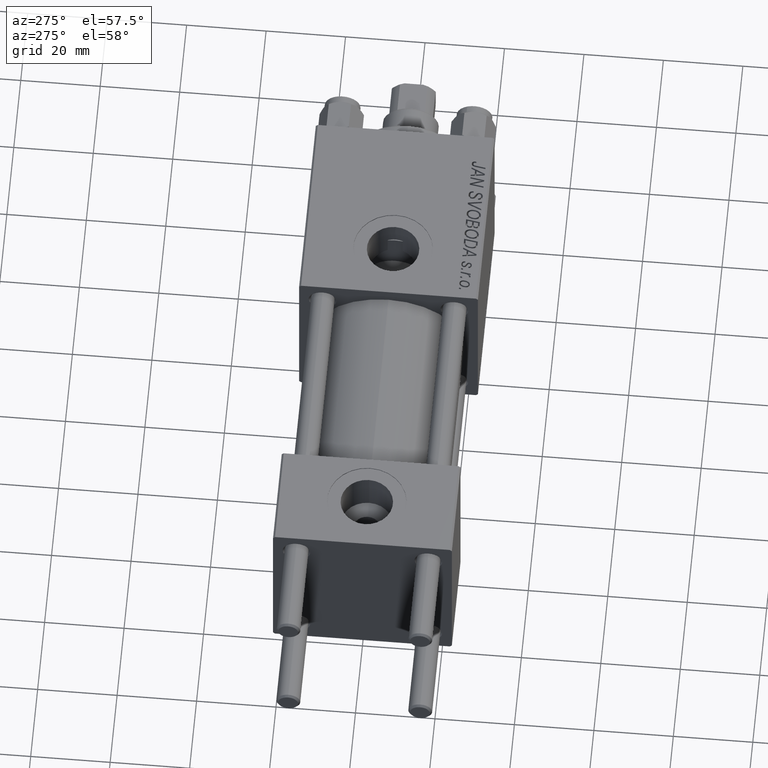
[diagram: clean part render]
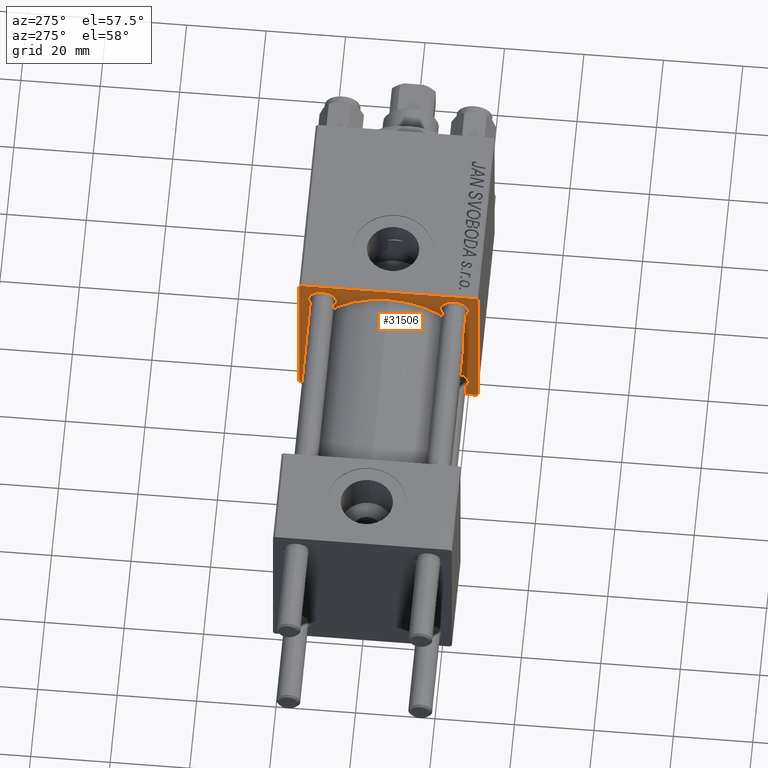
[diagram: same view with one face highlighted and labeled with its STEP entity id]
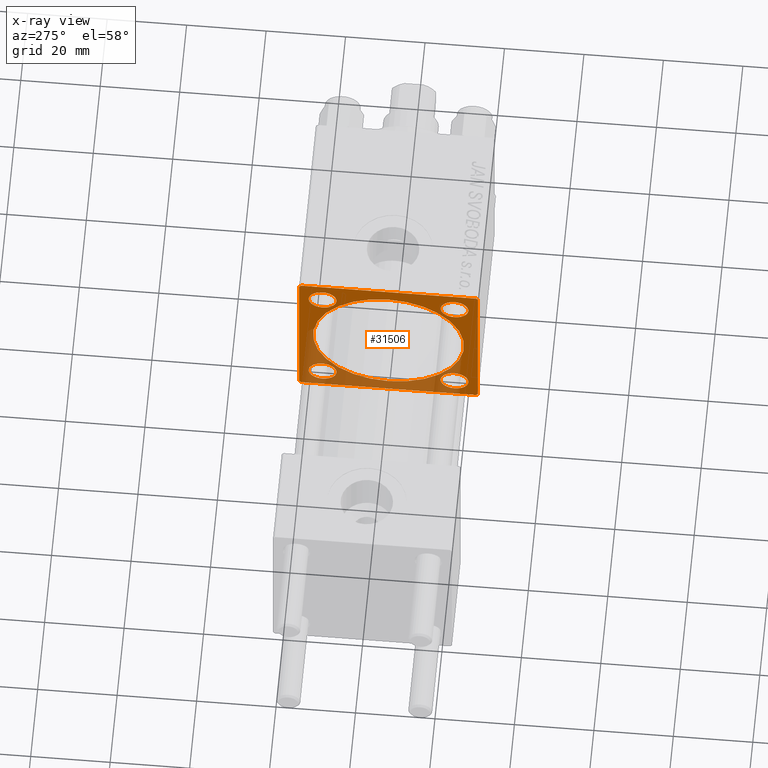
[diagram: x-ray of the same camera — body ghosted, the highlighted face saturated]
A machine part, auxiliary view. The second image highlights one B-rep face of the part: STEP entity #31506.
The next image is the same camera in x-ray: the body ghosted, the highlighted face saturated — about 35% of this face is hidden behind the body in this view.
In plain terms, the highlighted planar face has unit normal (-1, 0, 0).
Its self-contained STEP definition (entity closure, byte-faithful):
#254 = LINE ( 'NONE', #46551, #16432 ) ;
#352 = CIRCLE ( 'NONE', #48853, 19.00000000000000000 ) ;
#766 = CARTESIAN_POINT ( 'NONE',  ( 75.00000000000001421, -22.25000000000015277, -22.24999999999984013 ) ) ;
#838 = LINE ( 'NONE', #16783, #18905 ) ;
#996 = EDGE_LOOP ( 'NONE', ( #19220, #10251 ) ) ;
#1128 = DIRECTION ( 'NONE',  ( 1.000000000000000000, 0.000000000000000000, 0.000000000000000000 ) ) ;
#1183 = EDGE_CURVE ( 'NONE', #45757, #34801, #9941, .T. ) ;
#1452 = CARTESIAN_POINT ( 'NONE',  ( 75.00000000000001421, -16.59999999999999076, 13.09999999999999076 ) ) ;
#1459 = CARTESIAN_POINT ( 'NONE',  ( 75.00000000000001421, 0.000000000000000000, 0.000000000000000000 ) ) ;
#1831 = EDGE_LOOP ( 'NONE', ( #20210, #45706 ) ) ;
#1970 = FACE_BOUND ( 'NONE', #996, .T. ) ;
#2568 = CIRCLE ( 'NONE', #8174, 3.500000000000016875 ) ;
#2714 = EDGE_CURVE ( 'NONE', #23776, #42687, #11061, .T. ) ;
#2731 = VERTEX_POINT ( 'NONE', #41916 ) ;
#2834 = VERTEX_POINT ( 'NONE', #42360 ) ;
#2961 = DIRECTION ( 'NONE',  ( 0.000000000000000000, 0.000000000000000000, 1.000000000000000000 ) ) ;
#3202 = DIRECTION ( 'NONE',  ( 1.000000000000000000, -0.000000000000000000, 0.000000000000000000 ) ) ;
#3515 = DIRECTION ( 'NONE',  ( 1.000000000000000000, -0.000000000000000000, 0.000000000000000000 ) ) ;
#3828 = VERTEX_POINT ( 'NONE', #16471 ) ;
#4093 = AXIS2_PLACEMENT_3D ( 'NONE', #10116, #3515, #34137 ) ;
#4515 = AXIS2_PLACEMENT_3D ( 'NONE', #12258, #23141, #19370 ) ;
#4802 = CARTESIAN_POINT ( 'NONE',  ( 75.00000000000001421, 16.59999999999999787, -16.60000000000000497 ) ) ;
#5153 = AXIS2_PLACEMENT_3D ( 'NONE', #14535, #26901, #29982 ) ;
#5256 = FACE_BOUND ( 'NONE', #39639, .T. ) ;
#5264 = DIRECTION ( 'NONE',  ( 0.000000000000000000, 0.000000000000000000, 1.000000000000000000 ) ) ;
#6060 = ORIENTED_EDGE ( 'NONE', *, *, #8781, .F. ) ;
#6610 = CIRCLE ( 'NONE', #13070, 19.00000000000000000 ) ;
#6703 = EDGE_LOOP ( 'NONE', ( #16966, #13516, #6060, #22972, #40967, #35537, #6851, #27292 ) ) ;
#6851 = ORIENTED_EDGE ( 'NONE', *, *, #10288, .T. ) ;
#7837 = DIRECTION ( 'NONE',  ( 0.000000000000000000, 0.000000000000000000, -1.000000000000000000 ) ) ;
#8105 = DIRECTION ( 'NONE',  ( 0.000000000000000000, -0.7071067811865425767, 0.7071067811865525687 ) ) ;
#8174 = AXIS2_PLACEMENT_3D ( 'NONE', #30563, #43446, #5264 ) ;
#8368 = VECTOR ( 'NONE', #43005, 1000.000000000000000 ) ;
#8767 = EDGE_CURVE ( 'NONE', #40916, #45757, #31373, .T. ) ;
#8781 = EDGE_CURVE ( 'NONE', #44977, #3828, #254, .T. ) ;
#9199 = VERTEX_POINT ( 'NONE', #27203 ) ;
#9461 = EDGE_CURVE ( 'NONE', #14257, #22183, #48780, .T. ) ;
#9697 = LINE ( 'NONE', #10191, #11962 ) ;
#9941 = LINE ( 'NONE', #49161, #43860 ) ;
#10116 = CARTESIAN_POINT ( 'NONE',  ( 75.00000000000001421, -16.59999999999999076, 16.60000000000000853 ) ) ;
#10191 = CARTESIAN_POINT ( 'NONE',  ( 75.00000000000001421, 22.50000000000000355, 22.50000000000000355 ) ) ;
#10251 = ORIENTED_EDGE ( 'NONE', *, *, #9461, .T. ) ;
#10288 = EDGE_CURVE ( 'NONE', #42687, #40916, #838, .T. ) ;
#10506 = CARTESIAN_POINT ( 'NONE',  ( 75.00000000000001421, 16.59999999999999787, 13.09999999999998721 ) ) ;
#10610 = AXIS2_PLACEMENT_3D ( 'NONE', #1459, #16887, #32332 ) ;
#11023 = EDGE_CURVE ( 'NONE', #28402, #27769, #352, .T. ) ;
#11061 = LINE ( 'NONE', #18436, #18033 ) ;
#11180 = CARTESIAN_POINT ( 'NONE',  ( 75.00000000000001421, 22.00000000000000355, -22.49999999999999645 ) ) ;
#11874 = CARTESIAN_POINT ( 'NONE',  ( 75.00000000000001421, 16.59999999999999787, -13.09999999999997300 ) ) ;
#11962 = VECTOR ( 'NONE', #32497, 1000.000000000000000 ) ;
#12258 = CARTESIAN_POINT ( 'NONE',  ( 75.00000000000001421, -16.59999999999999076, -16.60000000000000853 ) ) ;
#12783 = VERTEX_POINT ( 'NONE', #1452 ) ;
#13070 = AXIS2_PLACEMENT_3D ( 'NONE', #43893, #1128, #28458 ) ;
#13516 = ORIENTED_EDGE ( 'NONE', *, *, #30639, .T. ) ;
#14257 = VERTEX_POINT ( 'NONE', #47633 ) ;
#14535 = CARTESIAN_POINT ( 'NONE',  ( 75.00000000000001421, -16.59999999999999076, -16.60000000000000853 ) ) ;
#14568 = EDGE_CURVE ( 'NONE', #25203, #43044, #40047, .T. ) ;
#14590 = CIRCLE ( 'NONE', #4093, 3.500000000000016875 ) ;
#14608 = EDGE_CURVE ( 'NONE', #22183, #14257, #26347, .T. ) ;
#15078 = DIRECTION ( 'NONE',  ( 0.000000000000000000, 0.000000000000000000, -1.000000000000000000 ) ) ;
#15166 = CARTESIAN_POINT ( 'NONE',  ( 75.00000000000001421, 16.59999999999999787, 20.10000000000001918 ) ) ;
#16360 = DIRECTION ( 'NONE',  ( -0.000000000000000000, 0.7071067811865573427, 0.7071067811865378028 ) ) ;
#16432 = VECTOR ( 'NONE', #7837, 1000.000000000000000 ) ;
#16471 = CARTESIAN_POINT ( 'NONE',  ( 75.00000000000001421, -22.49999999999999645, -21.99999999999997868 ) ) ;
#16783 = CARTESIAN_POINT ( 'NONE',  ( 75.00000000000001421, 22.50000000000000355, 22.50000000000000355 ) ) ;
#16887 = DIRECTION ( 'NONE',  ( -1.000000000000000000, 0.000000000000000000, -0.000000000000000000 ) ) ;
#16966 = ORIENTED_EDGE ( 'NONE', *, *, #1183, .T. ) ;
#17674 = CIRCLE ( 'NONE', #33825, 3.500000000000031086 ) ;
#17914 = VERTEX_POINT ( 'NONE', #11874 ) ;
#18033 = VECTOR ( 'NONE', #38604, 1000.000000000000000 ) ;
#18045 = DIRECTION ( 'NONE',  ( 0.000000000000000000, -1.000000000000000000, -7.709882115452476934E-17 ) ) ;
#18436 = CARTESIAN_POINT ( 'NONE',  ( 75.00000000000001421, 22.24999999999968026, 22.25000000000029488 ) ) ;
#18905 = VECTOR ( 'NONE', #15078, 1000.000000000000000 ) ;
#19220 = ORIENTED_EDGE ( 'NONE', *, *, #14608, .T. ) ;
#19370 = DIRECTION ( 'NONE',  ( 0.000000000000000000, 0.000000000000000000, 1.000000000000000000 ) ) ;
#19475 = DIRECTION ( 'NONE',  ( 1.000000000000000000, -0.000000000000000000, 0.000000000000000000 ) ) ;
#20069 = CIRCLE ( 'NONE', #34574, 3.500000000000031086 ) ;
#20210 = ORIENTED_EDGE ( 'NONE', *, *, #14568, .T. ) ;
#20228 = DIRECTION ( 'NONE',  ( 1.000000000000000000, -0.000000000000000000, 0.000000000000000000 ) ) ;
#22183 = VERTEX_POINT ( 'NONE', #27915 ) ;
#22281 = EDGE_CURVE ( 'NONE', #23776, #2731, #9697, .T. ) ;
#22449 = DIRECTION ( 'NONE',  ( 0.000000000000000000, 0.000000000000000000, -1.000000000000000000 ) ) ;
#22682 = CARTESIAN_POINT ( 'NONE',  ( 75.00000000000001421, 0.000000000000000000, 0.000000000000000000 ) ) ;
#22972 = ORIENTED_EDGE ( 'NONE', *, *, #39188, .T. ) ;
#23141 = DIRECTION ( 'NONE',  ( 1.000000000000000000, -0.000000000000000000, 0.000000000000000000 ) ) ;
#23776 = VERTEX_POINT ( 'NONE', #45662 ) ;
#23915 = CARTESIAN_POINT ( 'NONE',  ( 75.00000000000001421, -22.49999999999999645, 22.00000000000000711 ) ) ;
#24200 = PLANE ( 'NONE',  #10610 ) ;
#24460 = FACE_BOUND ( 'NONE', #24736, .T. ) ;
#24736 = EDGE_LOOP ( 'NONE', ( #32821, #25297 ) ) ;
#25041 = CARTESIAN_POINT ( 'NONE',  ( 75.00000000000001421, 16.59999999999999787, 16.60000000000000497 ) ) ;
#25054 = AXIS2_PLACEMENT_3D ( 'NONE', #25041, #40961, #48085 ) ;
#25203 = VERTEX_POINT ( 'NONE', #15166 ) ;
#25239 = EDGE_CURVE ( 'NONE', #9199, #17914, #20069, .T. ) ;
#25297 = ORIENTED_EDGE ( 'NONE', *, *, #25239, .T. ) ;
#25759 = VECTOR ( 'NONE', #16360, 1000.000000000000000 ) ;
#26347 = CIRCLE ( 'NONE', #4515, 3.500000000000031086 ) ;
#26901 = DIRECTION ( 'NONE',  ( 1.000000000000000000, -0.000000000000000000, 0.000000000000000000 ) ) ;
#27203 = CARTESIAN_POINT ( 'NONE',  ( 75.00000000000001421, 16.59999999999999787, -20.10000000000003340 ) ) ;
#27292 = ORIENTED_EDGE ( 'NONE', *, *, #8767, .T. ) ;
#27769 = VERTEX_POINT ( 'NONE', #42284 ) ;
#27915 = CARTESIAN_POINT ( 'NONE',  ( 75.00000000000001421, -16.59999999999999076, -13.09999999999997655 ) ) ;
#28273 = ORIENTED_EDGE ( 'NONE', *, *, #36483, .T. ) ;
#28402 = VERTEX_POINT ( 'NONE', #40079 ) ;
#28458 = DIRECTION ( 'NONE',  ( 0.000000000000000000, 0.000000000000000000, -1.000000000000000000 ) ) ;
#29030 = FACE_BOUND ( 'NONE', #46495, .T. ) ;
#29609 = ORIENTED_EDGE ( 'NONE', *, *, #30871, .T. ) ;
#29715 = EDGE_CURVE ( 'NONE', #43044, #25203, #39584, .T. ) ;
#29804 = DIRECTION ( 'NONE',  ( 1.000000000000000000, 0.000000000000000000, 0.000000000000000000 ) ) ;
#29982 = DIRECTION ( 'NONE',  ( 0.000000000000000000, 0.000000000000000000, 1.000000000000000000 ) ) ;
#30563 = CARTESIAN_POINT ( 'NONE',  ( 75.00000000000001421, -16.59999999999999076, 16.60000000000000853 ) ) ;
#30639 = EDGE_CURVE ( 'NONE', #34801, #3828, #42762, .T. ) ;
#30871 = EDGE_CURVE ( 'NONE', #12783, #2834, #14590, .T. ) ;
#30874 = CARTESIAN_POINT ( 'NONE',  ( 75.00000000000001421, 22.24999999999969802, -22.25000000000031619 ) ) ;
#31079 = ORIENTED_EDGE ( 'NONE', *, *, #46367, .T. ) ;
#31373 = LINE ( 'NONE', #30874, #8368 ) ;
#31506 = ADVANCED_FACE ( 'NONE', ( #29030, #39372, #24460, #1970, #5256, #39886 ), #24200, .T. ) ;
#31813 = CARTESIAN_POINT ( 'NONE',  ( 75.00000000000001421, -22.24999999999969447, 22.25000000000030909 ) ) ;
#31875 = DIRECTION ( 'NONE',  ( 0.000000000000000000, 0.000000000000000000, 1.000000000000000000 ) ) ;
#32332 = DIRECTION ( 'NONE',  ( -0.000000000000000000, 0.000000000000000000, 1.000000000000000000 ) ) ;
#32497 = DIRECTION ( 'NONE',  ( 0.000000000000000000, -1.000000000000000000, -2.312964634635742957E-16 ) ) ;
#32821 = ORIENTED_EDGE ( 'NONE', *, *, #38635, .T. ) ;
#33825 = AXIS2_PLACEMENT_3D ( 'NONE', #35404, #19475, #34897 ) ;
#34137 = DIRECTION ( 'NONE',  ( 0.000000000000000000, 0.000000000000000000, 1.000000000000000000 ) ) ;
#34574 = AXIS2_PLACEMENT_3D ( 'NONE', #4802, #20228, #31875 ) ;
#34801 = VERTEX_POINT ( 'NONE', #44939 ) ;
#34897 = DIRECTION ( 'NONE',  ( 0.000000000000000000, 0.000000000000000000, 1.000000000000000000 ) ) ;
#35404 = CARTESIAN_POINT ( 'NONE',  ( 75.00000000000001421, 16.59999999999999787, -16.60000000000000497 ) ) ;
#35537 = ORIENTED_EDGE ( 'NONE', *, *, #2714, .T. ) ;
#36015 = AXIS2_PLACEMENT_3D ( 'NONE', #42379, #3202, #2961 ) ;
#36483 = EDGE_CURVE ( 'NONE', #2834, #12783, #2568, .T. ) ;
#37377 = CARTESIAN_POINT ( 'NONE',  ( 75.00000000000001421, 22.50000000000000355, 21.99999999999997513 ) ) ;
#38604 = DIRECTION ( 'NONE',  ( 0.000000000000000000, 0.7071067811865573427, -0.7071067811865378028 ) ) ;
#38635 = EDGE_CURVE ( 'NONE', #17914, #9199, #17674, .T. ) ;
#39188 = EDGE_CURVE ( 'NONE', #44977, #2731, #40390, .T. ) ;
#39372 = FACE_BOUND ( 'NONE', #1831, .T. ) ;
#39584 = CIRCLE ( 'NONE', #25054, 3.500000000000016875 ) ;
#39639 = EDGE_LOOP ( 'NONE', ( #31079, #45540 ) ) ;
#39886 = FACE_OUTER_BOUND ( 'NONE', #6703, .T. ) ;
#40047 = CIRCLE ( 'NONE', #36015, 3.500000000000016875 ) ;
#40079 = CARTESIAN_POINT ( 'NONE',  ( 75.00000000000001421, 2.326828918379970970E-15, -19.00000000000000000 ) ) ;
#40390 = LINE ( 'NONE', #31813, #25759 ) ;
#40916 = VERTEX_POINT ( 'NONE', #47841 ) ;
#40961 = DIRECTION ( 'NONE',  ( 1.000000000000000000, -0.000000000000000000, 0.000000000000000000 ) ) ;
#40967 = ORIENTED_EDGE ( 'NONE', *, *, #22281, .F. ) ;
#41916 = CARTESIAN_POINT ( 'NONE',  ( 75.00000000000001421, -21.99999999999998224, 22.49999999999999289 ) ) ;
#42284 = CARTESIAN_POINT ( 'NONE',  ( 75.00000000000001421, 0.000000000000000000, 19.00000000000000000 ) ) ;
#42360 = CARTESIAN_POINT ( 'NONE',  ( 75.00000000000001421, -16.59999999999999076, 20.10000000000002274 ) ) ;
#42379 = CARTESIAN_POINT ( 'NONE',  ( 75.00000000000001421, 16.59999999999999787, 16.60000000000000497 ) ) ;
#42687 = VERTEX_POINT ( 'NONE', #37377 ) ;
#42762 = LINE ( 'NONE', #766, #48535 ) ;
#43005 = DIRECTION ( 'NONE',  ( -0.000000000000000000, -0.7071067811865573427, -0.7071067811865378028 ) ) ;
#43044 = VERTEX_POINT ( 'NONE', #10506 ) ;
#43446 = DIRECTION ( 'NONE',  ( 1.000000000000000000, -0.000000000000000000, 0.000000000000000000 ) ) ;
#43860 = VECTOR ( 'NONE', #18045, 1000.000000000000000 ) ;
#43893 = CARTESIAN_POINT ( 'NONE',  ( 75.00000000000001421, 0.000000000000000000, 0.000000000000000000 ) ) ;
#44939 = CARTESIAN_POINT ( 'NONE',  ( 75.00000000000001421, -21.99999999999998224, -22.50000000000000000 ) ) ;
#44977 = VERTEX_POINT ( 'NONE', #23915 ) ;
#45540 = ORIENTED_EDGE ( 'NONE', *, *, #11023, .T. ) ;
#45662 = CARTESIAN_POINT ( 'NONE',  ( 75.00000000000001421, 21.99999999999996092, 22.50000000000000355 ) ) ;
#45706 = ORIENTED_EDGE ( 'NONE', *, *, #29715, .T. ) ;
#45757 = VERTEX_POINT ( 'NONE', #11180 ) ;
#46367 = EDGE_CURVE ( 'NONE', #27769, #28402, #6610, .T. ) ;
#46495 = EDGE_LOOP ( 'NONE', ( #28273, #29609 ) ) ;
#46551 = CARTESIAN_POINT ( 'NONE',  ( 75.00000000000001421, -22.49999999999999645, 22.49999999999999289 ) ) ;
#47633 = CARTESIAN_POINT ( 'NONE',  ( 75.00000000000001421, -16.59999999999999076, -20.10000000000003695 ) ) ;
#47841 = CARTESIAN_POINT ( 'NONE',  ( 75.00000000000001421, 22.50000000000000355, -21.99999999999999645 ) ) ;
#48085 = DIRECTION ( 'NONE',  ( 0.000000000000000000, 0.000000000000000000, 1.000000000000000000 ) ) ;
#48535 = VECTOR ( 'NONE', #8105, 999.9999999999998863 ) ;
#48780 = CIRCLE ( 'NONE', #5153, 3.500000000000031086 ) ;
#48853 = AXIS2_PLACEMENT_3D ( 'NONE', #22682, #29804, #22449 ) ;
#49161 = CARTESIAN_POINT ( 'NONE',  ( 75.00000000000001421, 22.50000000000000355, -22.49999999999999645 ) ) ;